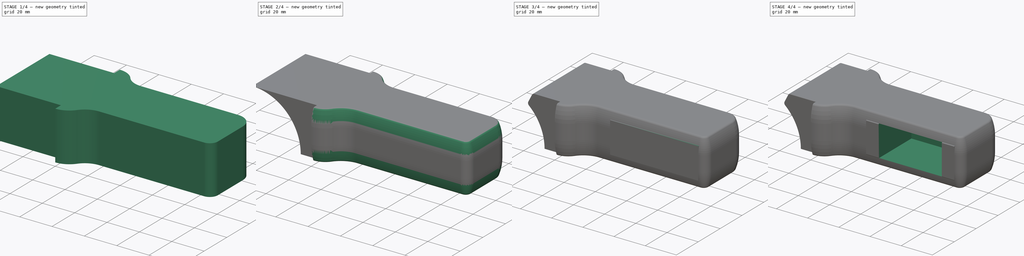
[diagram: build sequence overview — one tinted view per stage of 4, left to right]
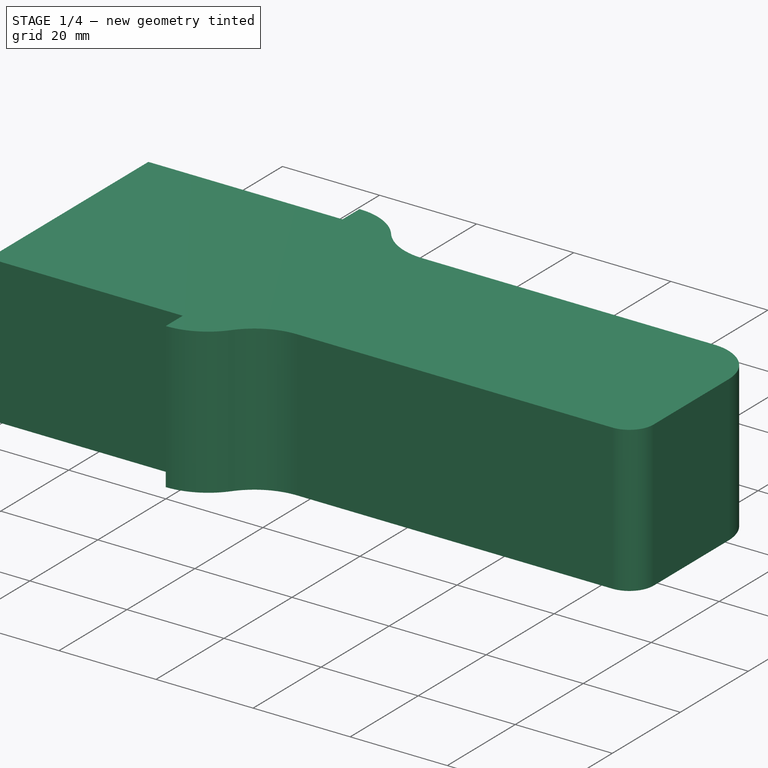
[diagram: stage 1 of 4 — iso view after this stage's code; geometry added in this stage tinted green]
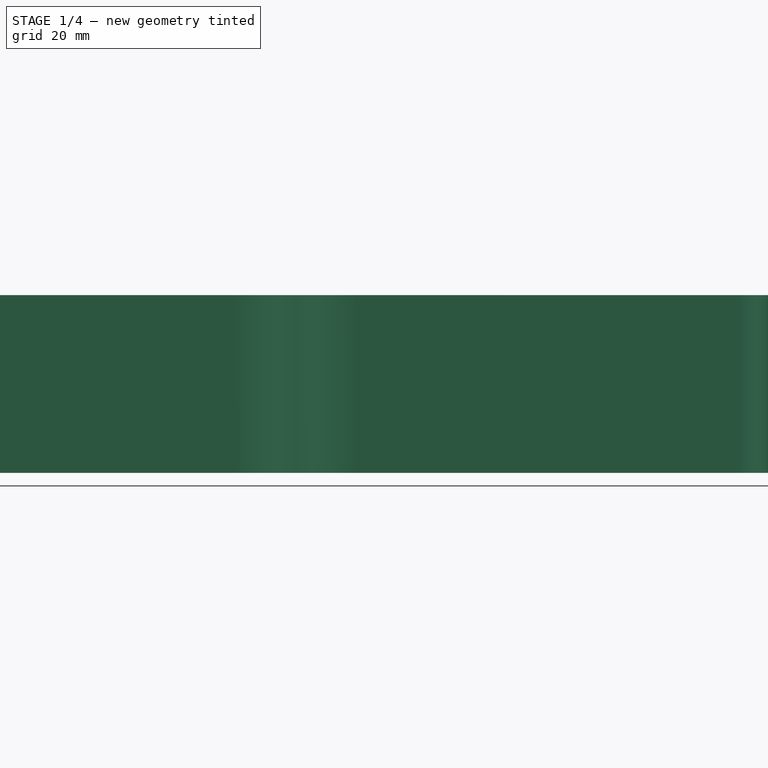
[diagram: stage 1 of 4 — front view after this stage's code; geometry added in this stage tinted green]
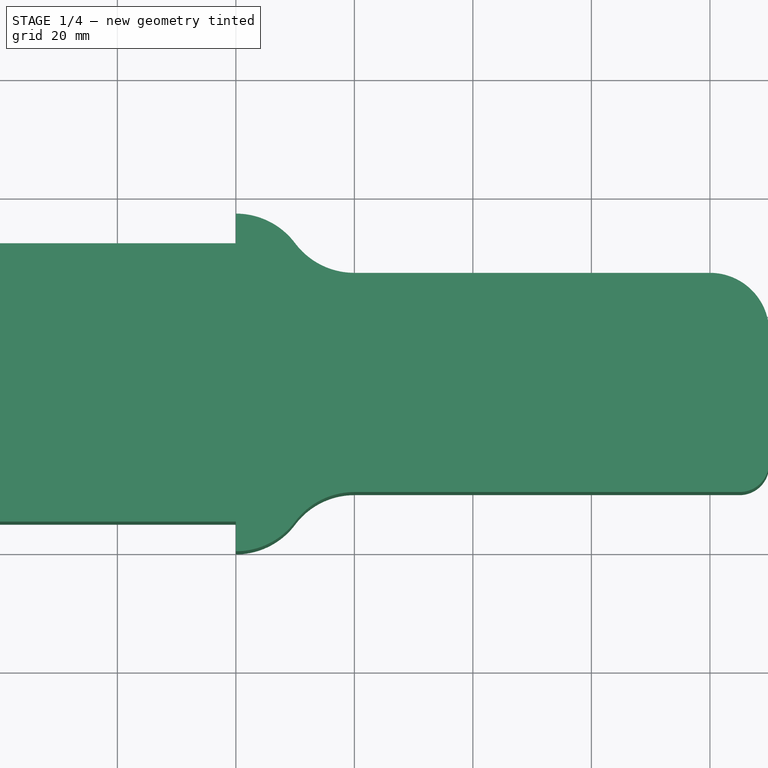
[diagram: stage 1 of 4 — top view after this stage's code; geometry added in this stage tinted green]
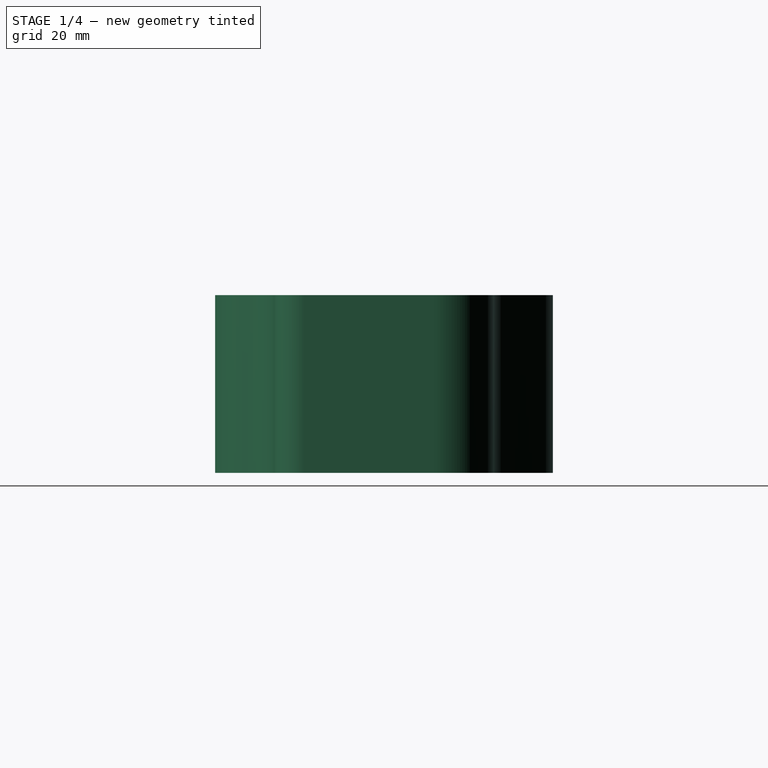
[diagram: stage 1 of 4 — right view after this stage's code; geometry added in this stage tinted green]
FCSTD DOCUMENT  (FreeCAD 0.18R4 (GitTag))
Label: Limb_Basebody (Template)
License: CreativeCommons Attribution-NonCommercial
LicenseURL: http://creativecommons.org/licenses/by-nc/4.0/
objects: Sketcher::SketchObject×6, PartDesign::Pocket×6, PartDesign::Fillet×3, PartDesign::Pad×2, PartDesign::SubtractivePipe×1, PartDesign::Body×1
note: 28 computed .brp shape members not serialized (recipe doc carries the construction recipe); baked Part::Feature solids carry a one-line shape summary decoded from their .brp

FEATURE [Sketcher::SketchObject] Sketch
  MapMode = 5
  Support = -> [XY_Plane]
  sketch-geometry (12):
    g0: LineSegment StartX=0 StartY=0 StartZ=0 EndX=0 EndY=57 EndZ=0
    g1: LineSegment StartX=0 StartY=57 StartZ=0 EndX=40 EndY=57 EndZ=0
    g2: ArcOfCircle CenterX=40 CenterY=44.5 CenterZ=0 NormalX=0 NormalY=0 NormalZ=1 AngleXU=0 Radius=12.5 StartAngle=0.643501 EndAngle=1.5708
    g3: ArcOfCircle CenterX=60 CenterY=59.5 CenterZ=0 NormalX=0 NormalY=0 NormalZ=1 AngleXU=0 Radius=12.5 StartAngle=3.78509 EndAngle=4.71239
    g4: LineSegment StartX=60 StartY=47 StartZ=0 EndX=120 EndY=47 EndZ=0
    g5: ArcOfCircle CenterX=120 CenterY=37 CenterZ=0 NormalX=0 NormalY=0 NormalZ=1 AngleXU=0 Radius=10 StartAngle=2e-16 EndAngle=1.5708
    g6: LineSegment StartX=130 StartY=37 StartZ=0 EndX=130 EndY=15 EndZ=0
    g7: ArcOfCircle CenterX=125 CenterY=15 CenterZ=0 NormalX=0 NormalY=0 NormalZ=1 AngleXU=0 Radius=5 StartAngle=4.71239 EndAngle=6.28319
    g8: LineSegment StartX=125 StartY=10 StartZ=0 EndX=60 EndY=10 EndZ=0
    g9: LineSegment StartX=40 StartY=0 StartZ=0 EndX=0 EndY=0 EndZ=0
    g10: ArcOfCircle CenterX=40 CenterY=12.5 CenterZ=0 NormalX=0 NormalY=0 NormalZ=1 AngleXU=0 Radius=12.5 StartAngle=4.71239 EndAngle=5.63968
    g11: ArcOfCircle CenterX=60 CenterY=-2.5 CenterZ=0 NormalX=0 NormalY=0 NormalZ=1 AngleXU=0 Radius=12.5 StartAngle=1.5708 EndAngle=2.49809
  constraints (31):
    c: Coincident(g-1,g0)
    c: PointOnObject(g0,g-2)
    c: Coincident(g0,g1)
    c: Horizontal(g1)
    c: Tangent(g1,g2) = 1.5708
    c: Tangent(g2,g3) = 1.5708
    c: Tangent(g3,g4) = -1.5708
    c: Tangent(g4,g5) = 1.5708
    c: Tangent(g5,g6) = 1.5708
    c: Tangent(g6,g7) = 1.5708
    c: Tangent(g7,g8) = 1.5708
    c: Coincident(g9,g0)
    c: Horizontal(g9)
    c: Horizontal(g4)
    c: Horizontal(g8)
    c: Vertical(g6)
    c: Tangent(g11,g8) = -1.5708
    c: Tangent(g11,g10) = 1.5708
    c: Radius(g7) = 5
    c: Radius(g5) = 10
    c: DistanceX(g1,g1) = 40
    c: DistanceX(g0,g6) = 130
    c: DistanceX(g1,g3) = 20
    c: Tangent(g10,g9) = 1.5708
    c: DistanceX(g9,g8) = 20
    c: DistanceX(g9,g9) = 40
    c: DistanceY(g0,g0) = 57
    c: DistanceY(g9,g8) = 10
    c: DistanceY(g3,g1) = 10
    c: DistanceX(g10,g8) = 10
    c: DistanceX(g2,g3) = 10
FEATURE [PartDesign::Pad] Pad  label="Baseplate"
  Length = 30
  Length2 = 100
  Profile = -> Sketch
  Type = 0
FEATURE [PartDesign::Pocket] Pocket  label="Servohorn Mount Pocket"
  BaseFeature = -> Pad
  Length = 5
  Length2 = 100
  Profile = -> Pad [Face12]
  Type = 0
FEATURE [PartDesign::Pocket] Pocket001  label="Ball Bearing Mount Pocket"
  BaseFeature = -> Pocket
  Length = 5
  Length2 = 100
  Profile = -> Pocket [Face3]
  Type = 0
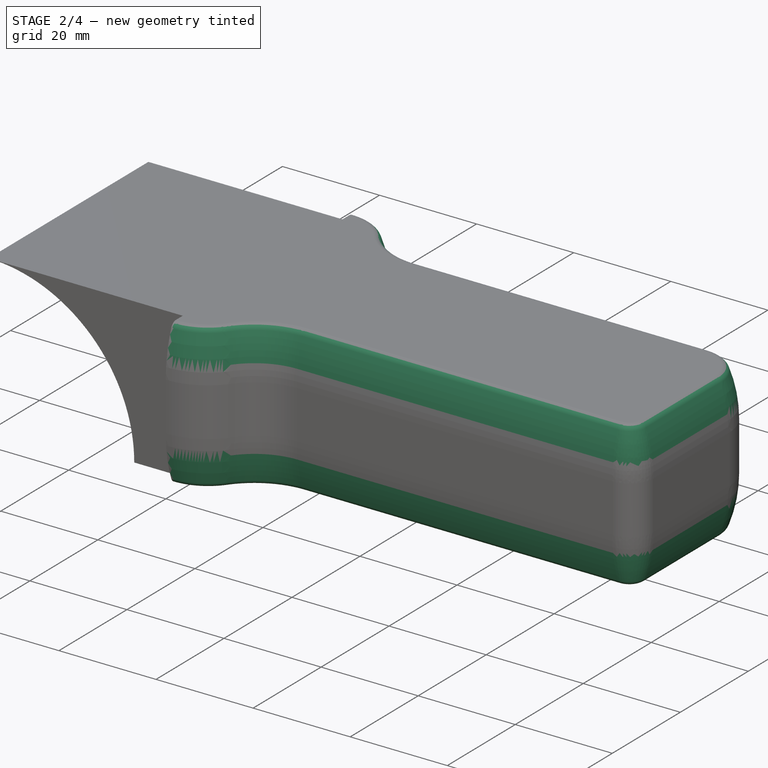
[diagram: stage 2 of 4 — iso view after this stage's code; geometry added in this stage tinted green]
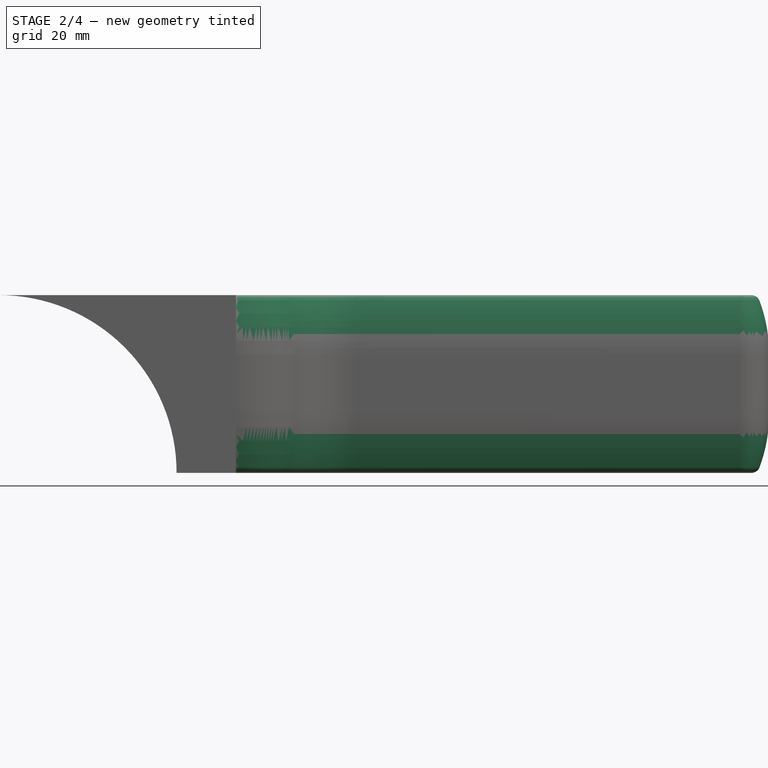
[diagram: stage 2 of 4 — front view after this stage's code; geometry added in this stage tinted green]
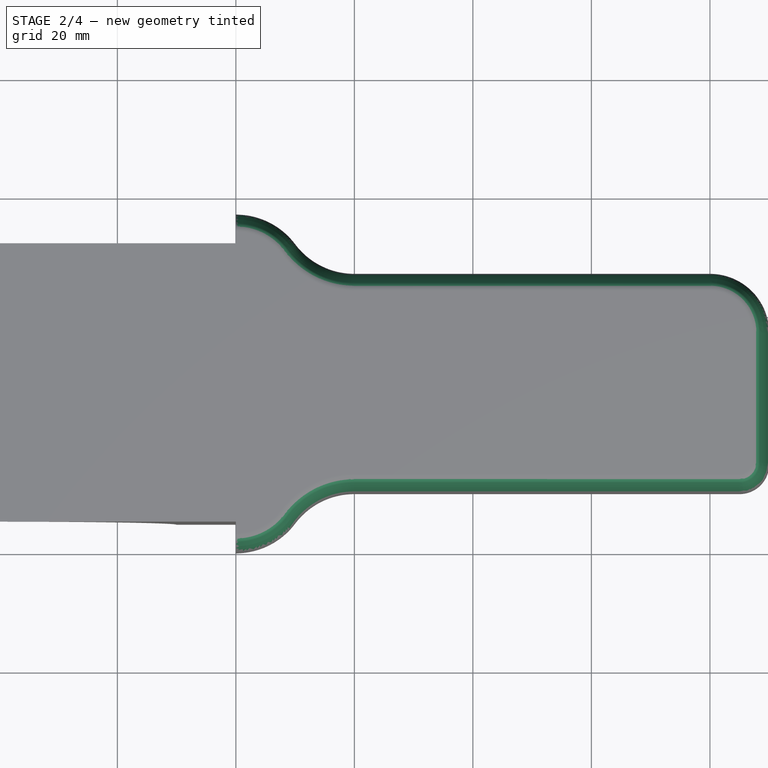
[diagram: stage 2 of 4 — top view after this stage's code; geometry added in this stage tinted green]
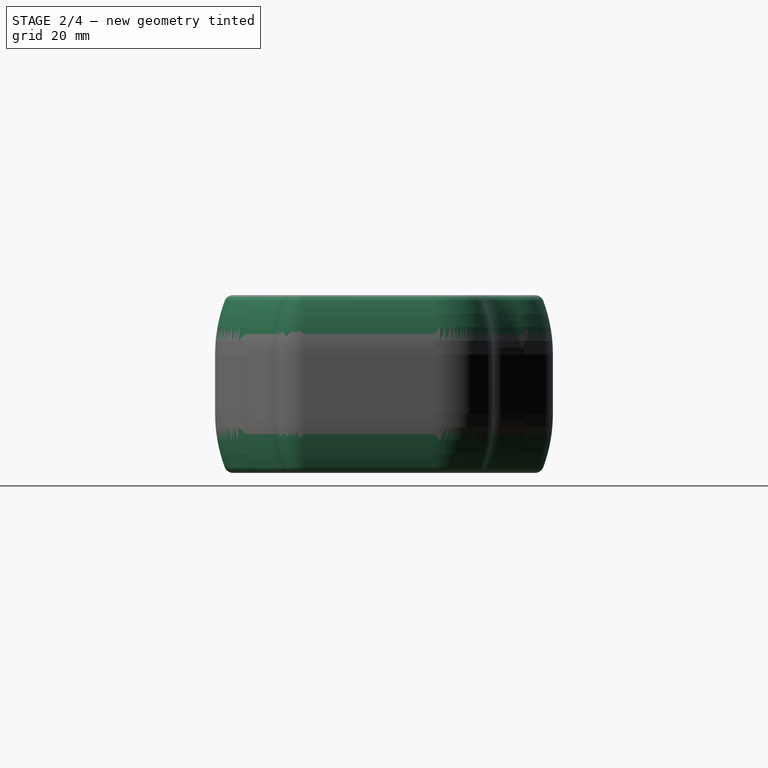
[diagram: stage 2 of 4 — right view after this stage's code; geometry added in this stage tinted green]
FEATURE [Sketcher::SketchObject] Sketch001
  MapMode = 5
  Placement = pos=(40,0,0) rot=(0.57735,-0.57735,-0.57735;2.0944rad)
  Support = -> [Pocket001]
  sketch-geometry (6):
    g0: ArcOfCircle CenterX=-25.9999 CenterY=20 CenterZ=0 NormalX=0 NormalY=0 NormalZ=1 AngleXU=0 Radius=25.9999 StartAngle=6.28318 EndAngle=6.67798
    g1: LineSegment StartX=-2 StartY=30 StartZ=0 EndX=1 EndY=30 EndZ=0
    g2: LineSegment StartX=1 StartY=30 StartZ=0 EndX=1 EndY=0 EndZ=0
    g3: LineSegment StartX=1 StartY=0 StartZ=0 EndX=-2 EndY=2.39524e-11 EndZ=0
    g4: ArcOfCircle CenterX=-25.9999 CenterY=9.99999 CenterZ=0 NormalX=0 NormalY=0 NormalZ=1 AngleXU=0 Radius=25.9999 StartAngle=5.88839 EndAngle=6.28319
    g5: LineSegment StartX=-2.5011e-12 StartY=10 StartZ=0 EndX=-2.5011e-12 EndY=20 EndZ=0
  constraints (20):
    c: DistanceY(g0,g0) = 10
    c: DistanceX(g0,g-1) = 2
    c: Vertical(g0,g-1)
    c: Tangent(g0,g-2)
    c: DistanceY(g-1,g0) = 30
    c: Coincident(g0,g1)
    c: Coincident(g1,g2)
    c: PointOnObject(g2,g-1)
    c: Vertical(g2)
    c: Coincident(g2,g3)
    c: PointOnObject(g3,g-1)
    c: Coincident(g4,g3)
    c: Tangent(g4,g-2)
    c: Vertical(g3,g0)
    c: DistanceY(g-1,g4) = 10
    c: Coincident(g5,g4)
    c: Coincident(g5,g0)
    c: Vertical(g5)
    c: Horizontal(g1)
    c: DistanceX(g1,g1) = 3
FEATURE [PartDesign::SubtractivePipe] SubtractivePipe  label="Smooth Beveled Surfaces"
  AuxilleryCurvelinear = true
  AuxillerySpineTangent = false
  BaseFeature = -> Pocket001
  Binormal = (0,0,0)
  Mode = 0
  Profile = -> Sketch001
  Spine = -> Pocket001 [Edge21,Edge22,Edge23,Edge24,Edge25,Edge26,Edge27,Edge28,Edge29]
  SpineTangent = false
  Transformation = 0
  Transition = 0
FEATURE [PartDesign::Fillet] Fillet  label="Smooth Edges"
  Base = -> SubtractivePipe [Edge20,Edge5]
  BaseFeature = -> SubtractivePipe
  Radius = 1.5
FEATURE [Sketcher::SketchObject] Sketch134
  MapMode = 5
  Placement = pos=(0,5,0) rot=(1,0,0;1.5708rad)
  Support = -> [Fillet]
  sketch-geometry (1):
    g0: Circle CenterX=0 CenterY=0 CenterZ=0 NormalX=0 NormalY=0 NormalZ=1 AngleXU=0 Radius=30
  constraints (2):
    c: Coincident(g0,g-1)
    c: Radius(g0) = 30
FEATURE [PartDesign::Pocket] Pocket039  label="Joint Pan"
  BaseFeature = -> Fillet
  Length = 47
  Length2 = 100
  Profile = -> Sketch134
  Type = 0
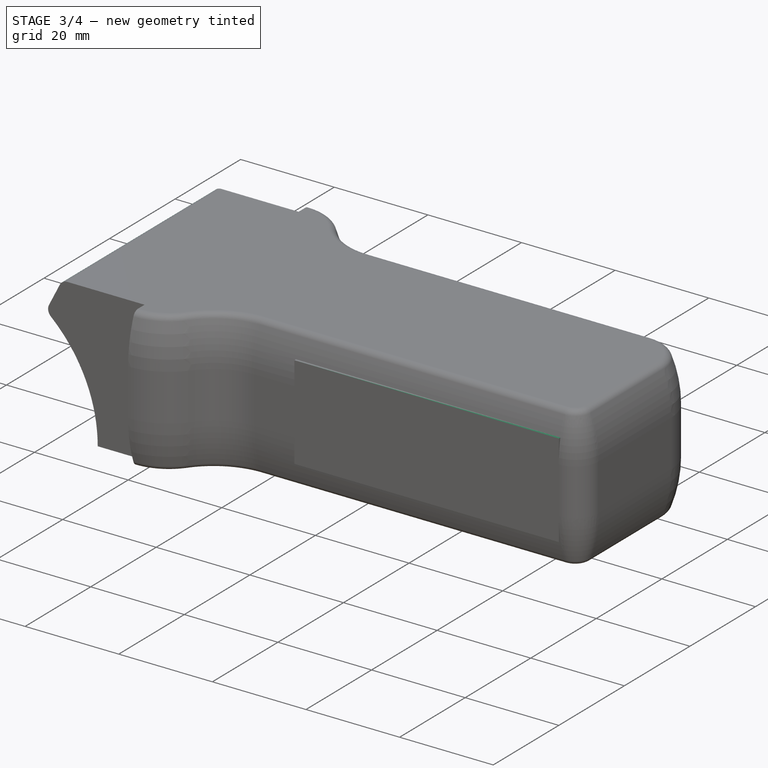
[diagram: stage 3 of 4 — iso view after this stage's code; geometry added in this stage tinted green]
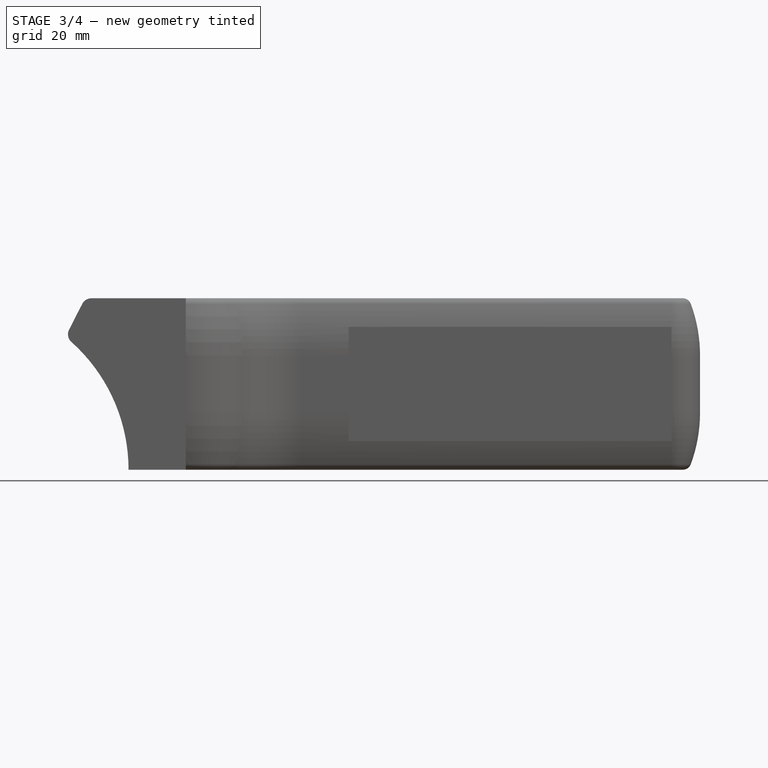
[diagram: stage 3 of 4 — front view after this stage's code; geometry added in this stage tinted green]
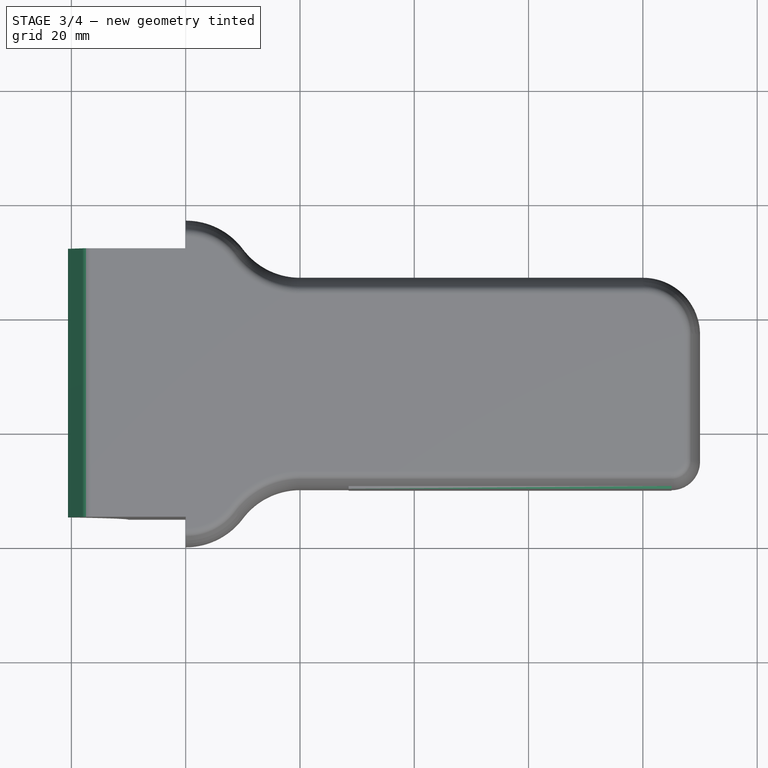
[diagram: stage 3 of 4 — top view after this stage's code; geometry added in this stage tinted green]
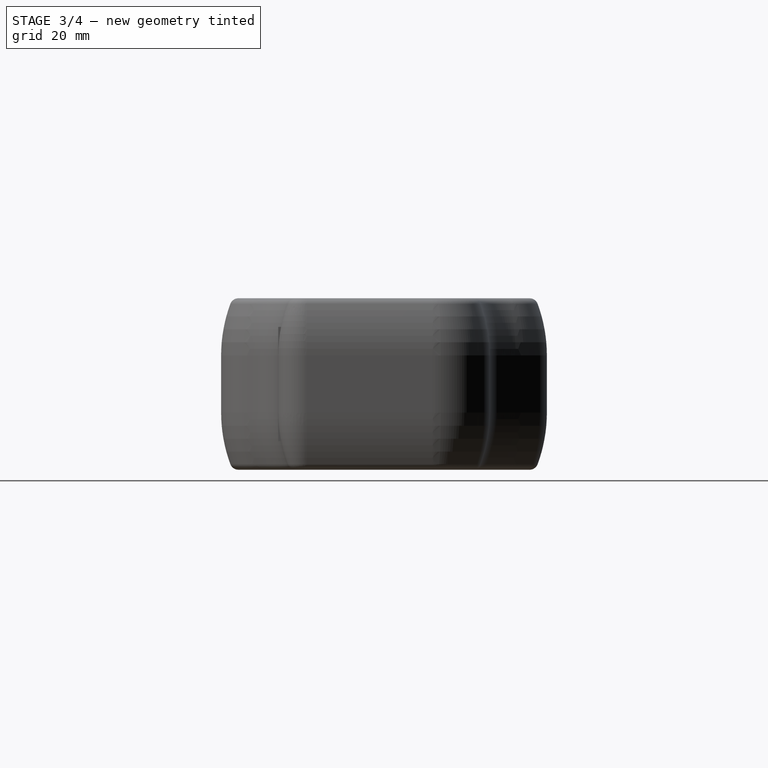
[diagram: stage 3 of 4 — right view after this stage's code; geometry added in this stage tinted green]
FEATURE [Sketcher::SketchObject] Sketch137
  ExternalGeometry = -> [Pocket039]
  MapMode = 5
  Placement = pos=(0,5,0) rot=(1,0,0;1.5708rad)
  Support = -> [Pocket039]
  sketch-geometry (7):
    g0: ArcOfCircle CenterX=23.5 CenterY=28.2018 CenterZ=0 NormalX=0 NormalY=0 NormalZ=1 AngleXU=0 Radius=1.79818 StartAngle=1.57079 EndAngle=2.66896
    g1: LineSegment StartX=21.8989 StartY=29.0204 StartZ=0 EndX=19.5977 EndY=24.5195 EndZ=0
    g2: ArcOfCircle CenterX=21.1988 CenterY=23.701 CenterZ=0 NormalX=0 NormalY=0 NormalZ=1 AngleXU=0 Radius=1.79818 StartAngle=2.66896 EndAngle=3.98266
    g3: Circle [constr] CenterX=0 CenterY=0 CenterZ=0 NormalX=0 NormalY=0 NormalZ=1 AngleXU=0 Radius=30
    g4: LineSegment StartX=23.5 StartY=30 StartZ=0 EndX=0 EndY=30 EndZ=0
    g5: LineSegment StartX=0 StartY=30 StartZ=0 EndX=0 EndY=22.3607 EndZ=0
    g6: LineSegment StartX=0 StartY=22.3607 StartZ=0 EndX=20 EndY=22.3607 EndZ=0
  constraints (19):
    c: Coincident(g3,g-1)
    c: Radius(g3) = 30
    c: Coincident(g4,g0)
    c: PointOnObject(g4,g3)
    c: Horizontal(g4)
    c: Tangent(g4,g0)
    c: Coincident(g5,g4)
    c: Vertical(g5)
    c: Tangent(g2,g3) = 1.5708
    c: Tangent(g2,g1) = -1.5708
    c: Tangent(g1,g0) = -1.5708
    c: DistanceX(g4,g4) = 23.5
    c: PointOnObject(g4,g-2)
    c: DistanceX(g5,g2) = 20
    c: Equal(g0,g2)
    c: Coincident(g6,g5)
    c: Coincident(g6,g2)
    c: Horizontal(g6)
    c: Horizontal(g-3,g0)
FEATURE [PartDesign::Pocket] Pocket041  label="Shortened Angled Top"
  BaseFeature = -> Pocket039
  Length = 47
  Length2 = 100
  Profile = -> Sketch137
  Type = 0
FEATURE [Sketcher::SketchObject] Sketch138
  MapMode = 5
  Placement = pos=(0,0,0) rot=(1,0,0;1.5708rad)
  Support = -> [XZ_Plane]
  sketch-geometry (4):
    g0: LineSegment StartX=68.5 StartY=25 StartZ=0 EndX=125 EndY=25 EndZ=0
    g1: LineSegment StartX=125 StartY=25 StartZ=0 EndX=125 EndY=5 EndZ=0
    g2: LineSegment StartX=125 StartY=5 StartZ=0 EndX=68.5 EndY=5 EndZ=0
    g3: LineSegment StartX=68.5 StartY=5 StartZ=0 EndX=68.5 EndY=25 EndZ=0
  constraints (12):
    c: Coincident(g0,g1)
    c: Coincident(g1,g2)
    c: Coincident(g2,g3)
    c: Coincident(g3,g0)
    c: Horizontal(g0)
    c: Horizontal(g2)
    c: Vertical(g1)
    c: Vertical(g3)
    c: DistanceX(g0,g0) = 56.5
    c: DistanceY(g3,g3) = 20
    c: DistanceY(g-1,g2) = 5
    c: DistanceX(g-1,g0) = 68.5
FEATURE [PartDesign::Pocket] Pocket042  label="Servoplacement Helper Pocket"
  BaseFeature = -> Pocket041
  Length = 15
  Length2 = 100
  Profile = -> Sketch138
  Type = 0
FEATURE [PartDesign::Pad] Pad001  label="Servoplacement Helper Pad"
  BaseFeature = -> Pocket042
  Length = 5
  Length2 = 100
  Profile = -> Pocket042 [Face60]
  Type = 0
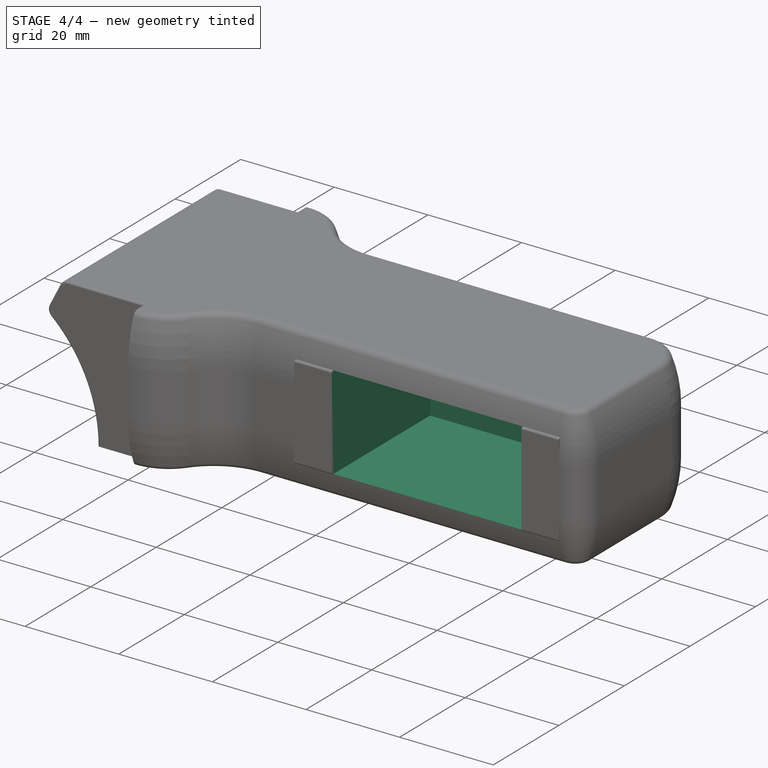
[diagram: stage 4 of 4 — iso view after this stage's code; geometry added in this stage tinted green]
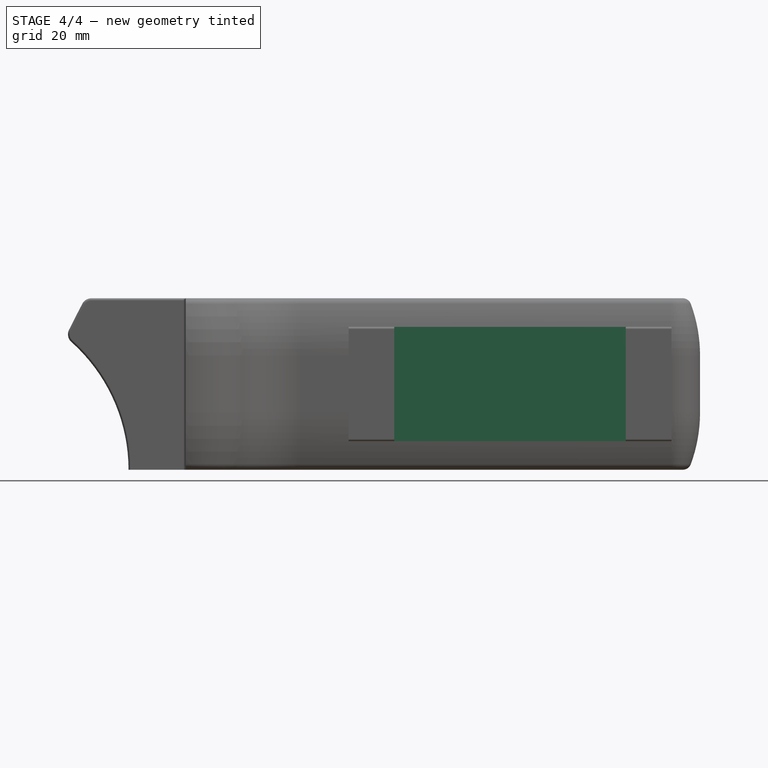
[diagram: stage 4 of 4 — front view after this stage's code; geometry added in this stage tinted green]
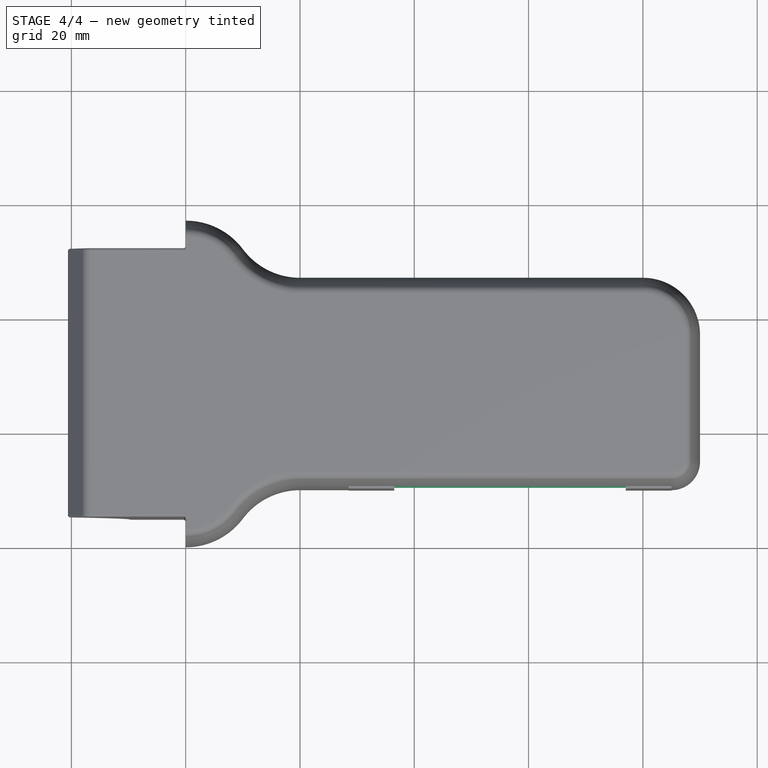
[diagram: stage 4 of 4 — top view after this stage's code; geometry added in this stage tinted green]
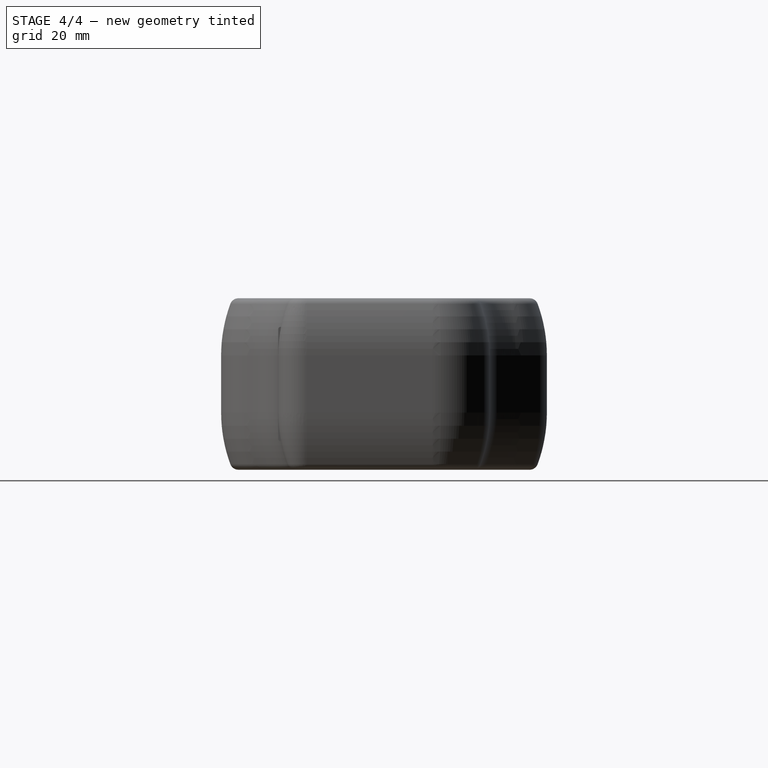
[diagram: stage 4 of 4 — right view after this stage's code; geometry added in this stage tinted green]
FEATURE [PartDesign::Fillet] Fillet001  label="Servoplacement Smooth Edges"
  Base = -> Pad001 [Edge121,Edge125]
  BaseFeature = -> Pad001
  Radius = 0.4
FEATURE [Sketcher::SketchObject] Sketch139
  MapMode = 5
  Placement = pos=(0,10,-2.2e-15) rot=(1,0,0;1.5708rad)
  Support = -> [Fillet001]
  sketch-geometry (4):
    g0: LineSegment StartX=76.5 StartY=25 StartZ=0 EndX=117 EndY=25 EndZ=0
    g1: LineSegment StartX=117 StartY=25 StartZ=0 EndX=117 EndY=5 EndZ=0
    g2: LineSegment StartX=117 StartY=5 StartZ=0 EndX=76.5 EndY=5 EndZ=0
    g3: LineSegment StartX=76.5 StartY=5 StartZ=0 EndX=76.5 EndY=25 EndZ=0
  constraints (12):
    c: Coincident(g0,g1)
    c: Coincident(g1,g2)
    c: Coincident(g2,g3)
    c: Coincident(g3,g0)
    c: Horizontal(g0)
    c: Horizontal(g2)
    c: Vertical(g1)
    c: Vertical(g3)
    c: DistanceX(g0,g0) = 40.5
    c: DistanceY(g3,g3) = 20
    c: DistanceY(g-1,g2) = 5
    c: DistanceX(g-1,g2) = 76.5
FEATURE [PartDesign::Pocket] Pocket043  label="Servo Pocket"
  BaseFeature = -> Fillet001
  Length = 30
  Length2 = 100
  Profile = -> Sketch139
  Type = 0
FEATURE [PartDesign::Fillet] Fillet002  label="Smooth Mount Edges"
  Base = -> Pocket043 [Edge147,Edge146,Edge141,Edge152]
  BaseFeature = -> Pocket043
  Radius = 0.4
FEATURE [PartDesign::Body] Body  label="Limb Basebody (Template)"
  Group = -> [Sketch,Pad,Pocket,Pocket001,Sketch001,SubtractivePipe,Fillet,Sketch134,Pocket039,Sketch137,Pocket041,Sketch138,Pocket042,Pad001,Fillet001,Sketch139,Pocket043,Fillet002]
  Origin = -> Origin
  Tip = -> Fillet002
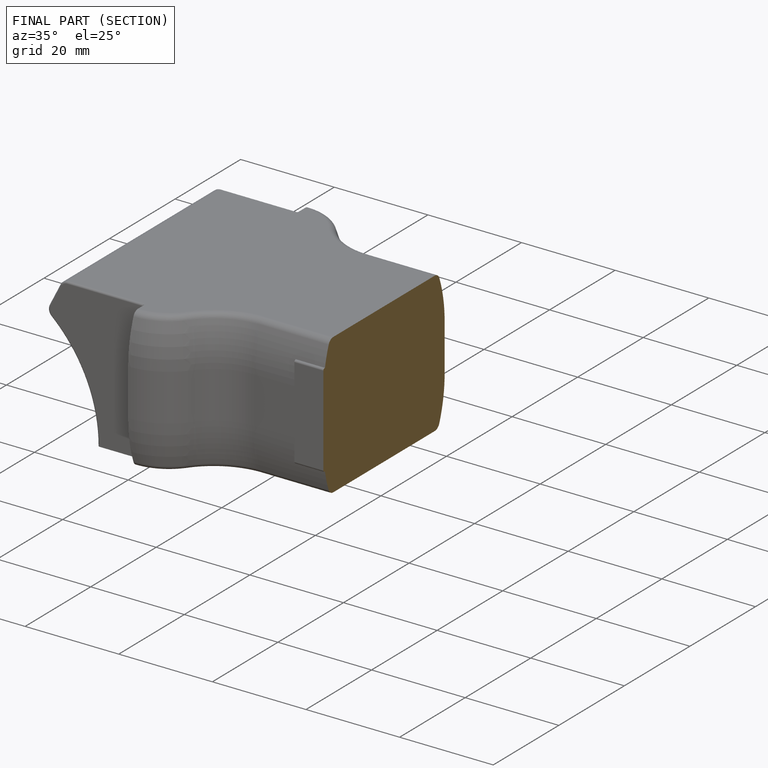
[diagram: finished part — half-section view (interior)]
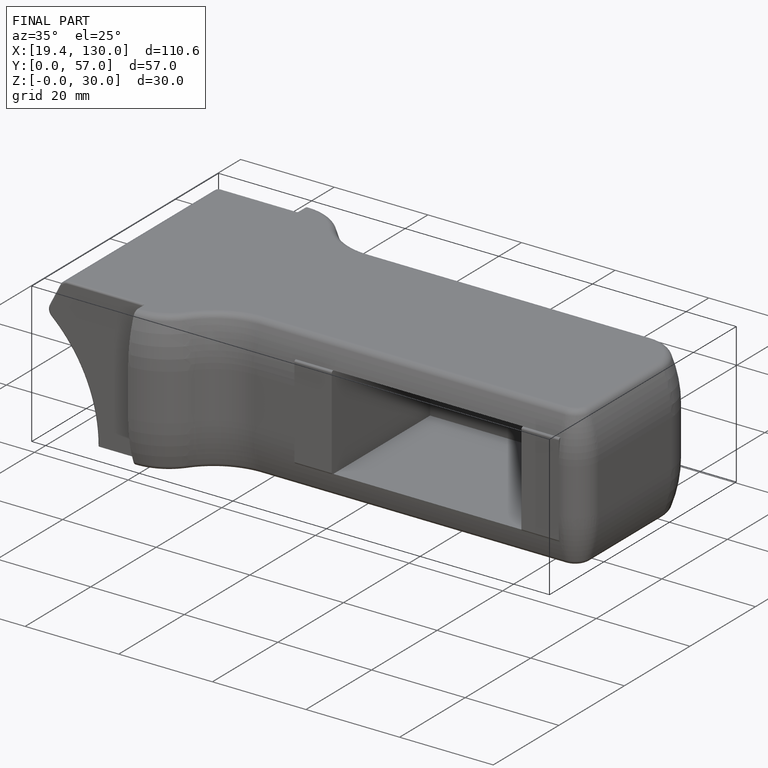
[diagram: finished part — iso view with bounding-box wireframe]
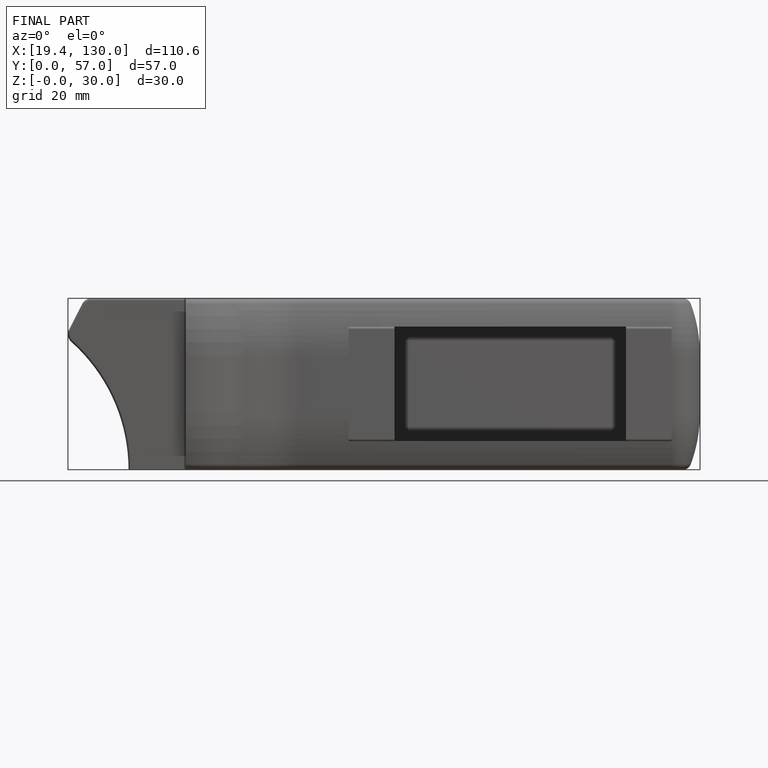
[diagram: finished part — front view with bounding-box wireframe]
